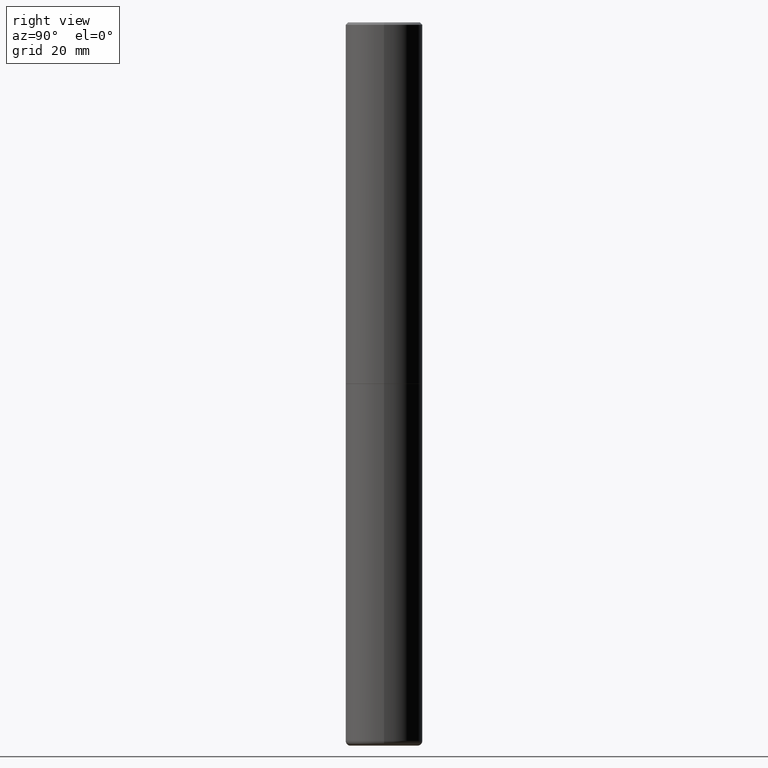
[diagram: clean part render]
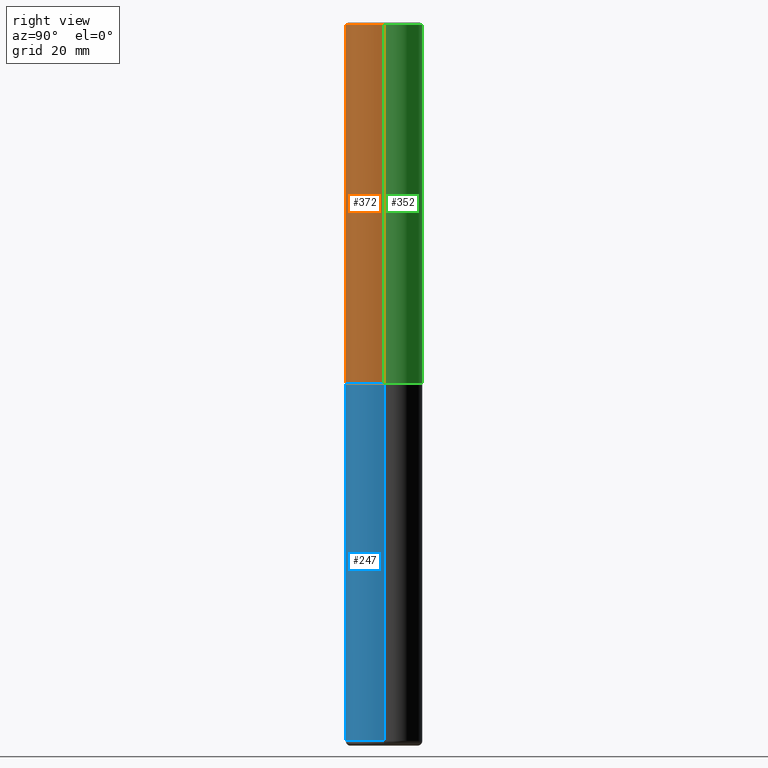
[diagram: same view with three faces highlighted in distinct colors, each labeled with its STEP entity id]
A machine part, right view with three faces highlighted in distinct colors.
Their STEP definitions:

[orange] entity #372 — the highlighted cylindrical surface (partial cylindrical patch) has radius 7.9997 mm, axis along (-0, 0, 1).
#5 = ORIENTED_EDGE ( 'NONE', *, *, #58, .T. ) ;
#14 = CARTESIAN_POINT ( 'NONE',  ( 0.3149500000000001743, -2.199284095337290660E-15, 1.535751875536930690E-29 ) ) ;
#26 = CARTESIAN_POINT ( 'NONE',  ( 0.000000000000000000, 0.000000000000000000, 0.000000000000000000 ) ) ;
#36 = CIRCLE ( 'NONE', #321, 0.3149500000000003408 ) ;
#50 = EDGE_CURVE ( 'NONE', #89, #357, #172, .T. ) ;
#52 = EDGE_CURVE ( 'NONE', #377, #265, #78, .T. ) ;
#58 = EDGE_CURVE ( 'NONE', #89, #377, #36, .T. ) ;
#63 = EDGE_CURVE ( 'NONE', #357, #265, #328, .T. ) ;
#78 = LINE ( 'NONE', #14, #211 ) ;
#89 = VERTEX_POINT ( 'NONE', #147 ) ;
#97 = AXIS2_PLACEMENT_3D ( 'NONE', #26, #390, #355 ) ;
#99 = FACE_OUTER_BOUND ( 'NONE', #134, .T. ) ;
#105 = CARTESIAN_POINT ( 'NONE',  ( -0.3149499999999998967, 2.129454468560425784E-15, -0.02000000000000006981 ) ) ;
#113 = DIRECTION ( 'NONE',  ( 1.000000000000000000, -6.982962677686265922E-15, 0.000000000000000000 ) ) ;
#134 = EDGE_LOOP ( 'NONE', ( #286, #5, #231, #206 ) ) ;
#147 = CARTESIAN_POINT ( 'NONE',  ( -0.3149500000000003408, -2.949963201043647330E-15, -2.951700000000000212 ) ) ;
#161 = CARTESIAN_POINT ( 'NONE',  ( 0.3149500000000003408, -1.250508956320060661E-14, -2.951700000000000212 ) ) ;
#170 = DIRECTION ( 'NONE',  ( 1.000000000000000000, -6.982962677686268288E-15, 0.000000000000000000 ) ) ;
#172 = LINE ( 'NONE', #207, #387 ) ;
#178 = DIRECTION ( 'NONE',  ( -2.445468806185136597E-29, 3.491481338843145583E-15, 1.000000000000000000 ) ) ;
#206 = ORIENTED_EDGE ( 'NONE', *, *, #63, .F. ) ;
#207 = CARTESIAN_POINT ( 'NONE',  ( -0.3149500000000001743, 2.237854346276436774E-15, -1.549218606675783237E-29 ) ) ;
#211 = VECTOR ( 'NONE', #270, 39.37007874015748143 ) ;
#231 = ORIENTED_EDGE ( 'NONE', *, *, #52, .T. ) ;
#233 = CYLINDRICAL_SURFACE ( 'NONE', #97, 0.3149500000000001743 ) ;
#265 = VERTEX_POINT ( 'NONE', #342 ) ;
#270 = DIRECTION ( 'NONE',  ( -2.445468806185136877E-29, 3.491481338843145188E-15, 1.000000000000000000 ) ) ;
#272 = DIRECTION ( 'NONE',  ( -2.445468806185136597E-29, 3.491481338843145583E-15, 1.000000000000000000 ) ) ;
#286 = ORIENTED_EDGE ( 'NONE', *, *, #50, .F. ) ;
#296 = CARTESIAN_POINT ( 'NONE',  ( 7.218290275216666916E-29, -1.030580546786331359E-14, -2.951700000000000212 ) ) ;
#321 = AXIS2_PLACEMENT_3D ( 'NONE', #296, #272, #170 ) ;
#328 = CIRCLE ( 'NONE', #374, 0.3149499999999998967 ) ;
#342 = CARTESIAN_POINT ( 'NONE',  ( 0.3149499999999998967, -2.230543471175006266E-15, -0.02000000000000006981 ) ) ;
#355 = DIRECTION ( 'NONE',  ( 1.000000000000000000, -6.982962677686265922E-15, 4.876176775795935232E-29 ) ) ;
#357 = VERTEX_POINT ( 'NONE', #105 ) ;
#362 = DIRECTION ( 'NONE',  ( -2.445468806185136877E-29, 3.491481338843145188E-15, 1.000000000000000000 ) ) ;
#364 = CARTESIAN_POINT ( 'NONE',  ( 4.890937612370289799E-31, -6.982962677686315028E-17, -0.02000000000000006981 ) ) ;
#372 = ADVANCED_FACE ( 'NONE', ( #99 ), #233, .T. ) ;
#374 = AXIS2_PLACEMENT_3D ( 'NONE', #364, #178, #113 ) ;
#377 = VERTEX_POINT ( 'NONE', #161 ) ;
#387 = VECTOR ( 'NONE', #362, 39.37007874015748143 ) ;
#390 = DIRECTION ( 'NONE',  ( -2.445468806185136597E-29, 3.491481338843145583E-15, 1.000000000000000000 ) ) ;

[blue] entity #247 — the highlighted cylindrical surface (partial cylindrical patch) has radius 7.9997 mm, axis along (-0, 0, 1).
#12 = CARTESIAN_POINT ( 'NONE',  ( 0.3149500000000000077, -1.250858104453944331E-14, -2.952700000000000102 ) ) ;
#34 = CARTESIAN_POINT ( 'NONE',  ( 7.220735744022852519E-29, -1.030929694920215502E-14, -2.952700000000000102 ) ) ;
#53 = AXIS2_PLACEMENT_3D ( 'NONE', #34, #67, #158 ) ;
#60 = FACE_OUTER_BOUND ( 'NONE', #185, .T. ) ;
#67 = DIRECTION ( 'NONE',  ( -2.445468806185136597E-29, 3.491481338843145583E-15, 1.000000000000000000 ) ) ;
#95 = CARTESIAN_POINT ( 'NONE',  ( -0.3149500000000000077, 2.237854346276435590E-15, -1.549218606675782676E-29 ) ) ;
#109 = VERTEX_POINT ( 'NONE', #12 ) ;
#119 = LINE ( 'NONE', #95, #222 ) ;
#143 = AXIS2_PLACEMENT_3D ( 'NONE', #409, #217, #218 ) ;
#153 = CYLINDRICAL_SURFACE ( 'NONE', #143, 0.3149500000000000077 ) ;
#158 = DIRECTION ( 'NONE',  ( 1.000000000000000000, -6.982962677686263555E-15, 0.000000000000000000 ) ) ;
#159 = VECTOR ( 'NONE', #344, 39.37007874015748143 ) ;
#162 = VERTEX_POINT ( 'NONE', #407 ) ;
#166 = ORIENTED_EDGE ( 'NONE', *, *, #221, .F. ) ;
#183 = DIRECTION ( 'NONE',  ( 1.000000000000000000, -6.982962677686263555E-15, 0.000000000000000000 ) ) ;
#185 = EDGE_LOOP ( 'NONE', ( #166, #200, #244, #236 ) ) ;
#186 = CARTESIAN_POINT ( 'NONE',  ( 0.3149500000000000077, -2.199284095337289871E-15, 1.535751875536930130E-29 ) ) ;
#199 = CARTESIAN_POINT ( 'NONE',  ( -0.3149500000000000077, -1.315748346921853027E-14, -2.952700000000000102 ) ) ;
#200 = ORIENTED_EDGE ( 'NONE', *, *, #291, .T. ) ;
#217 = DIRECTION ( 'NONE',  ( -2.445468806185136597E-29, 3.491481338843145583E-15, 1.000000000000000000 ) ) ;
#218 = DIRECTION ( 'NONE',  ( 1.000000000000000000, -6.982962677686266711E-15, 4.876176775795936353E-29 ) ) ;
#221 = EDGE_CURVE ( 'NONE', #290, #359, #119, .T. ) ;
#222 = VECTOR ( 'NONE', #379, 39.37007874015748143 ) ;
#223 = EDGE_CURVE ( 'NONE', #162, #109, #338, .T. ) ;
#236 = ORIENTED_EDGE ( 'NONE', *, *, #393, .F. ) ;
#244 = ORIENTED_EDGE ( 'NONE', *, *, #223, .T. ) ;
#245 = CARTESIAN_POINT ( 'NONE',  ( 1.434536456396262923E-28, -2.048137868178777591E-14, -5.866100000000000314 ) ) ;
#247 = ADVANCED_FACE ( 'NONE', ( #60 ), #153, .T. ) ;
#290 = VERTEX_POINT ( 'NONE', #401 ) ;
#291 = EDGE_CURVE ( 'NONE', #290, #162, #375, .T. ) ;
#301 = CIRCLE ( 'NONE', #53, 0.3149500000000000077 ) ;
#338 = LINE ( 'NONE', #186, #159 ) ;
#344 = DIRECTION ( 'NONE',  ( -2.445468806185136877E-29, 3.491481338843145188E-15, 1.000000000000000000 ) ) ;
#359 = VERTEX_POINT ( 'NONE', #199 ) ;
#367 = AXIS2_PLACEMENT_3D ( 'NONE', #245, #370, #183 ) ;
#370 = DIRECTION ( 'NONE',  ( -2.445468806185136597E-29, 3.491481338843145583E-15, 1.000000000000000000 ) ) ;
#375 = CIRCLE ( 'NONE', #367, 0.3149500000000000077 ) ;
#379 = DIRECTION ( 'NONE',  ( -2.445468806185136877E-29, 3.491481338843145188E-15, 1.000000000000000000 ) ) ;
#393 = EDGE_CURVE ( 'NONE', #359, #109, #301, .T. ) ;
#401 = CARTESIAN_POINT ( 'NONE',  ( -0.3149499999999998967, -1.824352433551134308E-14, -5.866100000000000314 ) ) ;
#407 = CARTESIAN_POINT ( 'NONE',  ( 0.3149499999999998967, -2.268066277712506420E-14, -5.866100000000000314 ) ) ;
#409 = CARTESIAN_POINT ( 'NONE',  ( 0.000000000000000000, 0.000000000000000000, 0.000000000000000000 ) ) ;

[green] entity #352 — the highlighted cylindrical surface (partial cylindrical patch) has radius 7.9997 mm, axis along (-0, 0, 1).
#10 = CIRCLE ( 'NONE', #229, 0.3149500000000003408 ) ;
#14 = CARTESIAN_POINT ( 'NONE',  ( 0.3149500000000001743, -2.199284095337290660E-15, 1.535751875536930690E-29 ) ) ;
#23 = EDGE_CURVE ( 'NONE', #265, #357, #267, .T. ) ;
#29 = CYLINDRICAL_SURFACE ( 'NONE', #136, 0.3149500000000001743 ) ;
#50 = EDGE_CURVE ( 'NONE', #89, #357, #172, .T. ) ;
#52 = EDGE_CURVE ( 'NONE', #377, #265, #78, .T. ) ;
#62 = ORIENTED_EDGE ( 'NONE', *, *, #23, .F. ) ;
#68 = ORIENTED_EDGE ( 'NONE', *, *, #52, .F. ) ;
#78 = LINE ( 'NONE', #14, #211 ) ;
#89 = VERTEX_POINT ( 'NONE', #147 ) ;
#93 = CARTESIAN_POINT ( 'NONE',  ( 7.218290275216666916E-29, -1.030580546786331359E-14, -2.951700000000000212 ) ) ;
#94 = EDGE_LOOP ( 'NONE', ( #224, #194, #62, #68 ) ) ;
#102 = DIRECTION ( 'NONE',  ( -2.445468806185136597E-29, 3.491481338843145583E-15, 1.000000000000000000 ) ) ;
#105 = CARTESIAN_POINT ( 'NONE',  ( -0.3149499999999998967, 2.129454468560425784E-15, -0.02000000000000006981 ) ) ;
#123 = DIRECTION ( 'NONE',  ( 1.000000000000000000, -6.982962677686268288E-15, 0.000000000000000000 ) ) ;
#136 = AXIS2_PLACEMENT_3D ( 'NONE', #385, #102, #316 ) ;
#142 = AXIS2_PLACEMENT_3D ( 'NONE', #400, #238, #210 ) ;
#147 = CARTESIAN_POINT ( 'NONE',  ( -0.3149500000000003408, -2.949963201043647330E-15, -2.951700000000000212 ) ) ;
#161 = CARTESIAN_POINT ( 'NONE',  ( 0.3149500000000003408, -1.250508956320060661E-14, -2.951700000000000212 ) ) ;
#172 = LINE ( 'NONE', #207, #387 ) ;
#194 = ORIENTED_EDGE ( 'NONE', *, *, #50, .T. ) ;
#204 = EDGE_CURVE ( 'NONE', #377, #89, #10, .T. ) ;
#207 = CARTESIAN_POINT ( 'NONE',  ( -0.3149500000000001743, 2.237854346276436774E-15, -1.549218606675783237E-29 ) ) ;
#210 = DIRECTION ( 'NONE',  ( 1.000000000000000000, -6.982962677686265922E-15, 0.000000000000000000 ) ) ;
#211 = VECTOR ( 'NONE', #270, 39.37007874015748143 ) ;
#224 = ORIENTED_EDGE ( 'NONE', *, *, #204, .T. ) ;
#229 = AXIS2_PLACEMENT_3D ( 'NONE', #93, #311, #123 ) ;
#238 = DIRECTION ( 'NONE',  ( -2.445468806185136597E-29, 3.491481338843145583E-15, 1.000000000000000000 ) ) ;
#265 = VERTEX_POINT ( 'NONE', #342 ) ;
#267 = CIRCLE ( 'NONE', #142, 0.3149499999999998967 ) ;
#270 = DIRECTION ( 'NONE',  ( -2.445468806185136877E-29, 3.491481338843145188E-15, 1.000000000000000000 ) ) ;
#311 = DIRECTION ( 'NONE',  ( -2.445468806185136597E-29, 3.491481338843145583E-15, 1.000000000000000000 ) ) ;
#316 = DIRECTION ( 'NONE',  ( 1.000000000000000000, -6.982962677686265922E-15, 4.876176775795935232E-29 ) ) ;
#342 = CARTESIAN_POINT ( 'NONE',  ( 0.3149499999999998967, -2.230543471175006266E-15, -0.02000000000000006981 ) ) ;
#352 = ADVANCED_FACE ( 'NONE', ( #417 ), #29, .T. ) ;
#357 = VERTEX_POINT ( 'NONE', #105 ) ;
#362 = DIRECTION ( 'NONE',  ( -2.445468806185136877E-29, 3.491481338843145188E-15, 1.000000000000000000 ) ) ;
#377 = VERTEX_POINT ( 'NONE', #161 ) ;
#385 = CARTESIAN_POINT ( 'NONE',  ( 0.000000000000000000, 0.000000000000000000, 0.000000000000000000 ) ) ;
#387 = VECTOR ( 'NONE', #362, 39.37007874015748143 ) ;
#400 = CARTESIAN_POINT ( 'NONE',  ( 4.890937612370289799E-31, -6.982962677686315028E-17, -0.02000000000000006981 ) ) ;
#417 = FACE_OUTER_BOUND ( 'NONE', #94, .T. ) ;